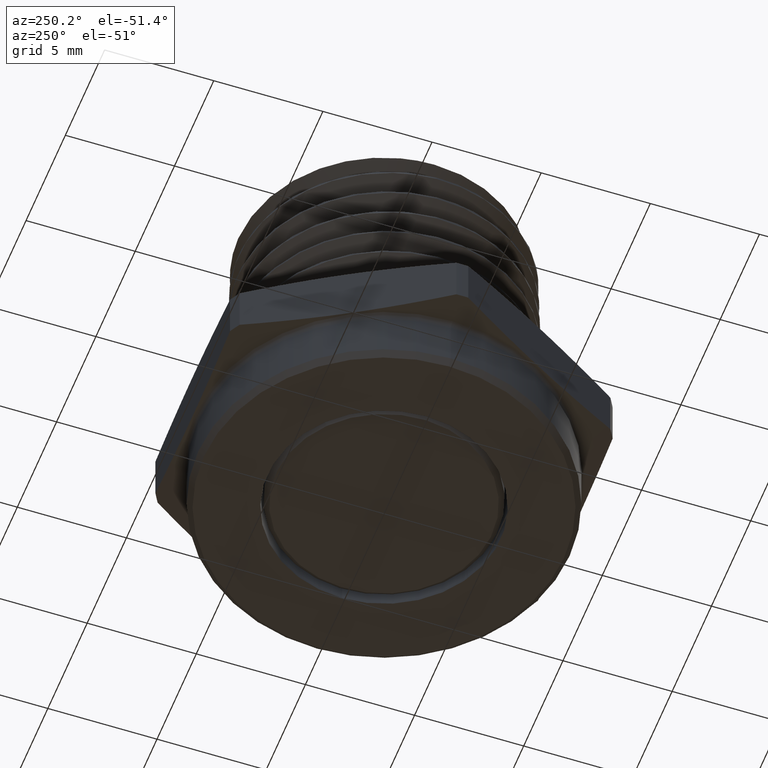
[diagram: clean part render]
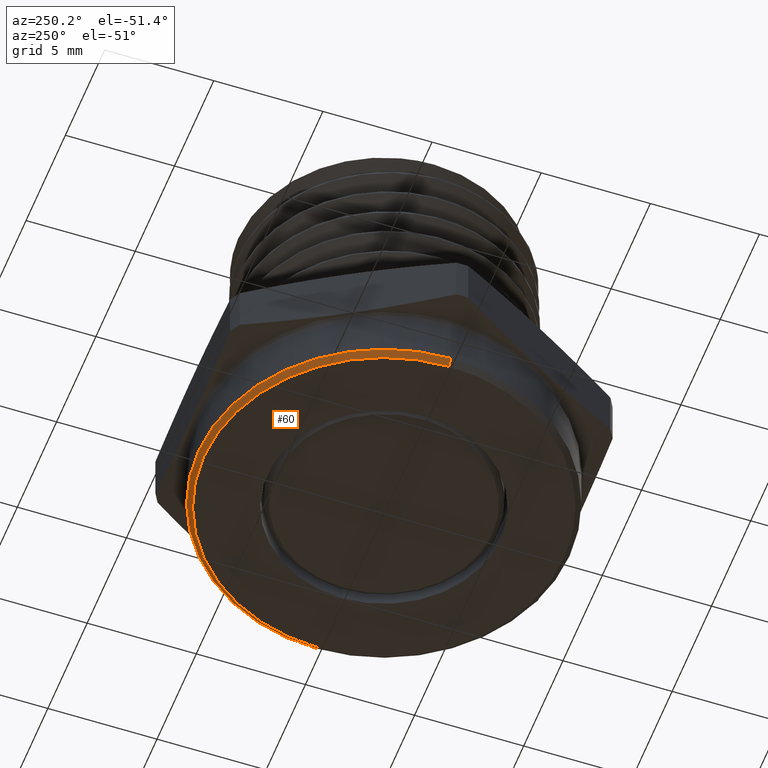
[diagram: same view with one face highlighted and labeled with its STEP entity id]
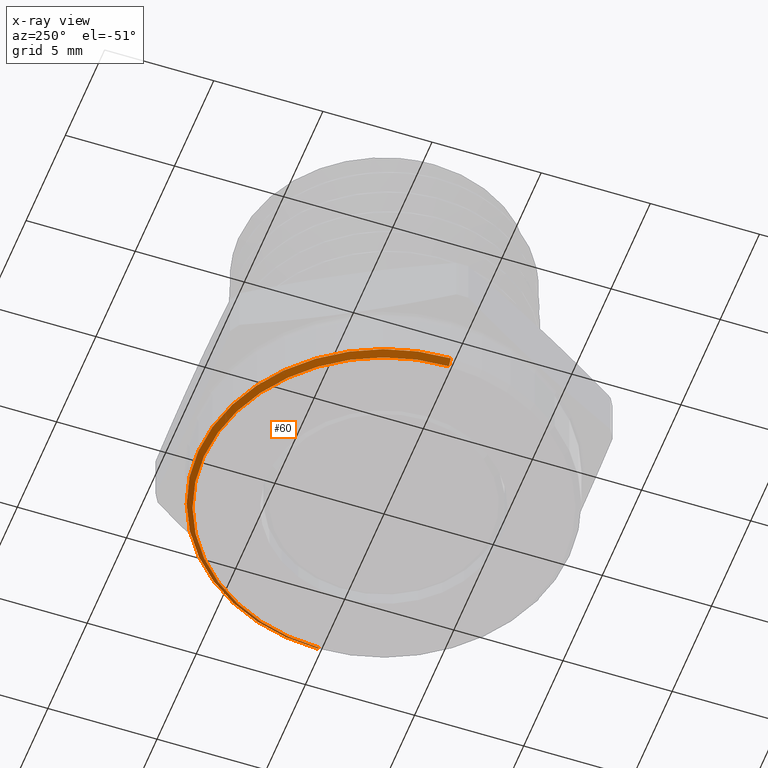
[diagram: x-ray of the same camera — body ghosted, the highlighted face saturated]
A machine part, auxiliary view. The second image highlights one B-rep face of the part: STEP entity #60.
The next image is the same camera in x-ray: the body ghosted, the highlighted face saturated — about 0% of this face is hidden behind the body in this view.
In plain terms, the highlighted conical surface has half-angle 45 deg.
Its self-contained STEP definition (entity closure, byte-faithful):
#60 = ADVANCED_FACE ( 'NONE', ( #751 ), #892, .T. ) ;
#144 = EDGE_CURVE ( 'NONE', #547, #511, #1331, .T. ) ;
#145 = EDGE_CURVE ( 'NONE', #547, #5346, #1339, .T. ) ;
#146 = EDGE_CURVE ( 'NONE', #558, #5346, #1341, .T. ) ;
#147 = EDGE_CURVE ( 'NONE', #511, #558, #1342, .T. ) ;
#331 = ORIENTED_EDGE ( 'NONE', *, *, #147, .F. ) ;
#332 = ORIENTED_EDGE ( 'NONE', *, *, #145, .T. ) ;
#333 = ORIENTED_EDGE ( 'NONE', *, *, #146, .F. ) ;
#511 = VERTEX_POINT ( 'NONE', #4071 ) ;
#547 = VERTEX_POINT ( 'NONE', #4077 ) ;
#558 = VERTEX_POINT ( 'NONE', #4094 ) ;
#645 = EDGE_LOOP ( 'NONE', ( #5339, #332, #333, #331 ) ) ;
#751 = FACE_OUTER_BOUND ( 'NONE', #645, .T. ) ;
#788 = AXIS2_PLACEMENT_3D ( 'NONE', #5416, #5417, #5415 ) ;
#861 = AXIS2_PLACEMENT_3D ( 'NONE', #1769, #1770, #1771 ) ;
#862 = AXIS2_PLACEMENT_3D ( 'NONE', #1776, #1777, #1778 ) ;
#892 = CONICAL_SURFACE ( 'NONE', #788, 0.3249999999999999600, 0.7853981633974380600 ) ;
#1331 = CIRCLE ( 'NONE', #861, 0.3249999999999999600 ) ;
#1339 = LINE ( 'NONE', #1768, #1343 ) ;
#1341 = CIRCLE ( 'NONE', #862, 0.3350000000000001300 ) ;
#1342 = LINE ( 'NONE', #1775, #1346 ) ;
#1343 = VECTOR ( 'NONE', #1767, 39.37007874015748900 ) ;
#1346 = VECTOR ( 'NONE', #1772, 39.37007874015748900 ) ;
#1767 = DIRECTION ( 'NONE',  ( -0.7071067811865402500, 8.659560562354842900E-017, 0.7071067811865546800 ) ) ;
#1768 = CARTESIAN_POINT ( 'NONE',  ( -0.3249999999999999600, 3.980102097228897100E-017, -0.1000000000000000100 ) ) ;
#1769 = CARTESIAN_POINT ( 'NONE',  ( 0.0000000000000000000, 0.0000000000000000000, -0.1000000000000000100 ) ) ;
#1770 = DIRECTION ( 'NONE',  ( 0.0000000000000000000, 0.0000000000000000000, -1.000000000000000000 ) ) ;
#1771 = DIRECTION ( 'NONE',  ( -1.000000000000000000, 0.0000000000000000000, 0.0000000000000000000 ) ) ;
#1772 = DIRECTION ( 'NONE',  ( 0.7071067811865402500, 0.0000000000000000000, 0.7071067811865546800 ) ) ;
#1775 = CARTESIAN_POINT ( 'NONE',  ( 0.3249999999999999600, 0.0000000000000000000, -0.1000000000000000100 ) ) ;
#1776 = CARTESIAN_POINT ( 'NONE',  ( 0.0000000000000000000, 0.0000000000000000000, -0.08999999999999963600 ) ) ;
#1777 = DIRECTION ( 'NONE',  ( 0.0000000000000000000, 0.0000000000000000000, 1.000000000000000000 ) ) ;
#1778 = DIRECTION ( 'NONE',  ( -1.000000000000000000, 0.0000000000000000000, 0.0000000000000000000 ) ) ;
#4071 = CARTESIAN_POINT ( 'NONE',  ( 0.3249999999999999600, 0.0000000000000000000, -0.1000000000000000100 ) ) ;
#4077 = CARTESIAN_POINT ( 'NONE',  ( -0.3249999999999999600, 4.041334437186265900E-017, -0.1000000000000000100 ) ) ;
#4094 = CARTESIAN_POINT ( 'NONE',  ( 0.3350000000000001300, 0.0000000000000000000, -0.08999999999999963600 ) ) ;
#5249 = CARTESIAN_POINT ( 'NONE',  ( -0.3350000000000001300, 4.102566777143634000E-017, -0.08999999999999963600 ) ) ;
#5339 = ORIENTED_EDGE ( 'NONE', *, *, #144, .F. ) ;
#5346 = VERTEX_POINT ( 'NONE', #5249 ) ;
#5415 = DIRECTION ( 'NONE',  ( 1.000000000000000000, 0.0000000000000000000, 0.0000000000000000000 ) ) ;
#5416 = CARTESIAN_POINT ( 'NONE',  ( 0.0000000000000000000, 0.0000000000000000000, -0.1000000000000000100 ) ) ;
#5417 = DIRECTION ( 'NONE',  ( 0.0000000000000000000, 0.0000000000000000000, 1.000000000000000000 ) ) ;